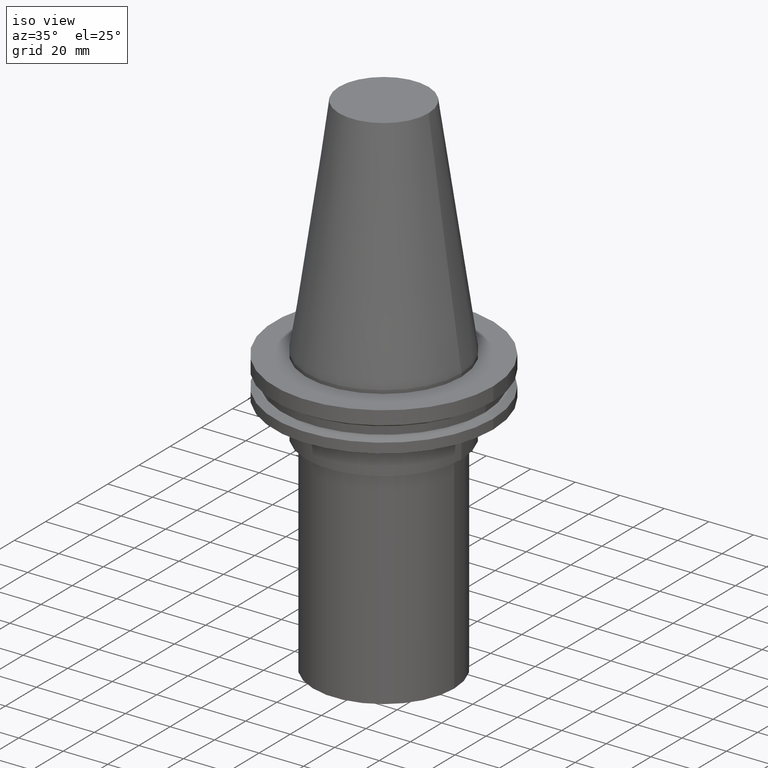
[diagram: clean part render]
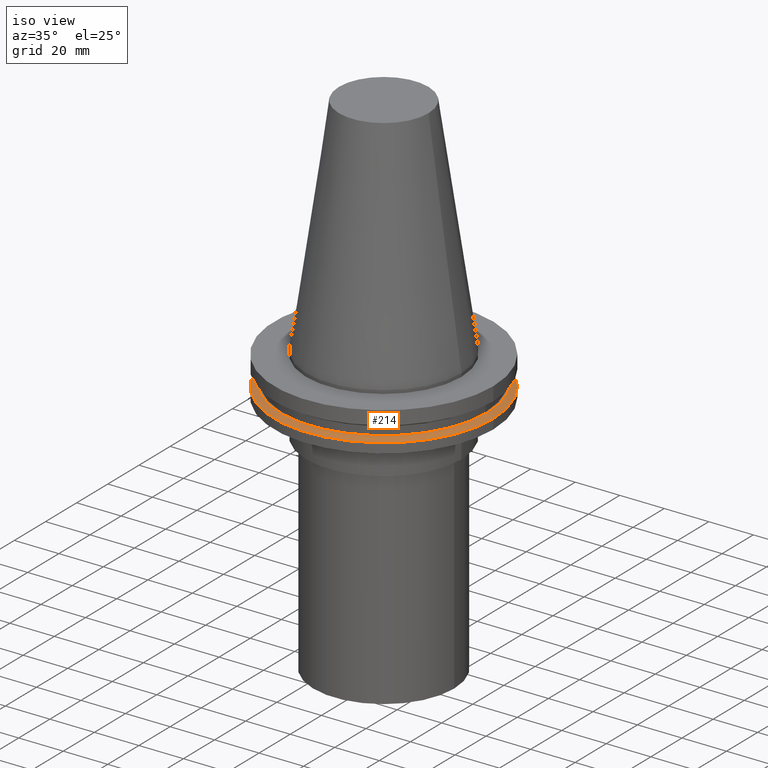
[diagram: same view with one face highlighted and labeled with its STEP entity id]
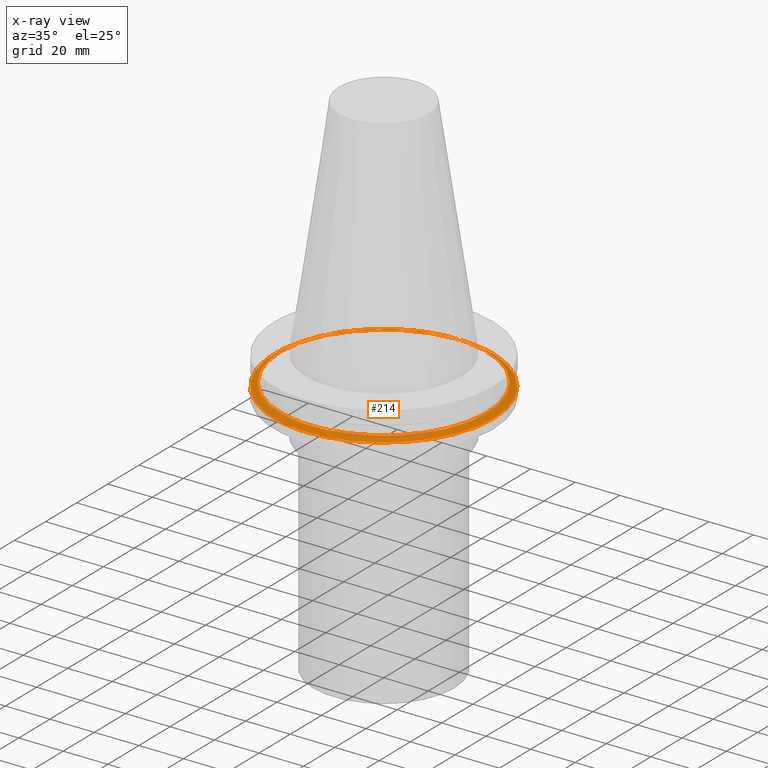
[diagram: x-ray of the same camera — body ghosted, the highlighted face saturated]
A machine part, iso view. The second image highlights one B-rep face of the part: STEP entity #214.
The next image is the same camera in x-ray: the body ghosted, the highlighted face saturated — about 9% of this face is hidden behind the body in this view.
In plain terms, the highlighted conical surface has half-angle 60 deg.
Its self-contained STEP definition (entity closure, byte-faithful):
#13 = CARTESIAN_POINT ( 'NONE',  ( 0.000000000000000000, 0.000000000000000000, -13.05499999999999794 ) ) ;
#28 = AXIS2_PLACEMENT_3D ( 'NONE', #13, #47, #228 ) ;
#29 = CARTESIAN_POINT ( 'NONE',  ( 49.21499999999998920, 0.000000000000000000, -14.65761014474876944 ) ) ;
#47 = DIRECTION ( 'NONE',  ( -0.000000000000000000, -0.000000000000000000, 1.000000000000000000 ) ) ;
#50 = CARTESIAN_POINT ( 'NONE',  ( 0.000000000000000000, 0.000000000000000000, -14.65761014474876944 ) ) ;
#57 = VERTEX_POINT ( 'NONE', #29 ) ;
#77 = DIRECTION ( 'NONE',  ( 1.000000000000000000, 0.000000000000000000, 0.000000000000000000 ) ) ;
#78 = FACE_BOUND ( 'NONE', #151, .T. ) ;
#82 = CIRCLE ( 'NONE', #276, 49.21499999999998920 ) ;
#89 = FACE_OUTER_BOUND ( 'NONE', #129, .T. ) ;
#129 = EDGE_LOOP ( 'NONE', ( #391 ) ) ;
#144 = AXIS2_PLACEMENT_3D ( 'NONE', #50, #235, #289 ) ;
#151 = EDGE_LOOP ( 'NONE', ( #335 ) ) ;
#163 = VERTEX_POINT ( 'NONE', #316 ) ;
#205 = DIRECTION ( 'NONE',  ( -0.000000000000000000, -0.000000000000000000, 1.000000000000000000 ) ) ;
#214 = ADVANCED_FACE ( 'NONE', ( #78, #89 ), #266, .T. ) ;
#225 = EDGE_CURVE ( 'NONE', #57, #57, #82, .T. ) ;
#228 = DIRECTION ( 'NONE',  ( 1.000000000000000000, 0.000000000000000000, 0.000000000000000000 ) ) ;
#235 = DIRECTION ( 'NONE',  ( 0.000000000000000000, 0.000000000000000000, -1.000000000000000000 ) ) ;
#266 = CONICAL_SURFACE ( 'NONE', #144, 49.21499999999998920, 1.047197551196554333 ) ;
#276 = AXIS2_PLACEMENT_3D ( 'NONE', #321, #205, #77 ) ;
#289 = DIRECTION ( 'NONE',  ( -1.000000000000000000, 0.000000000000000000, 0.000000000000000000 ) ) ;
#304 = EDGE_CURVE ( 'NONE', #163, #163, #369, .T. ) ;
#316 = CARTESIAN_POINT ( 'NONE',  ( 46.43919780457007818, 0.000000000000000000, -13.05499999999999794 ) ) ;
#321 = CARTESIAN_POINT ( 'NONE',  ( 0.000000000000000000, 0.000000000000000000, -14.65761014474876944 ) ) ;
#335 = ORIENTED_EDGE ( 'NONE', *, *, #304, .F. ) ;
#369 = CIRCLE ( 'NONE', #28, 46.43919780457007818 ) ;
#391 = ORIENTED_EDGE ( 'NONE', *, *, #225, .T. ) ;